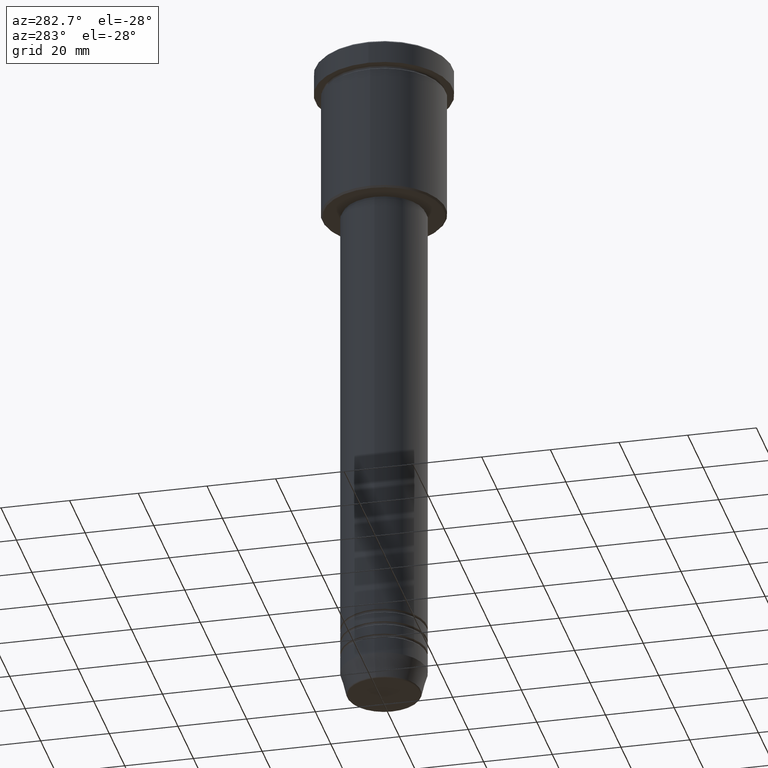
[diagram: clean part render]
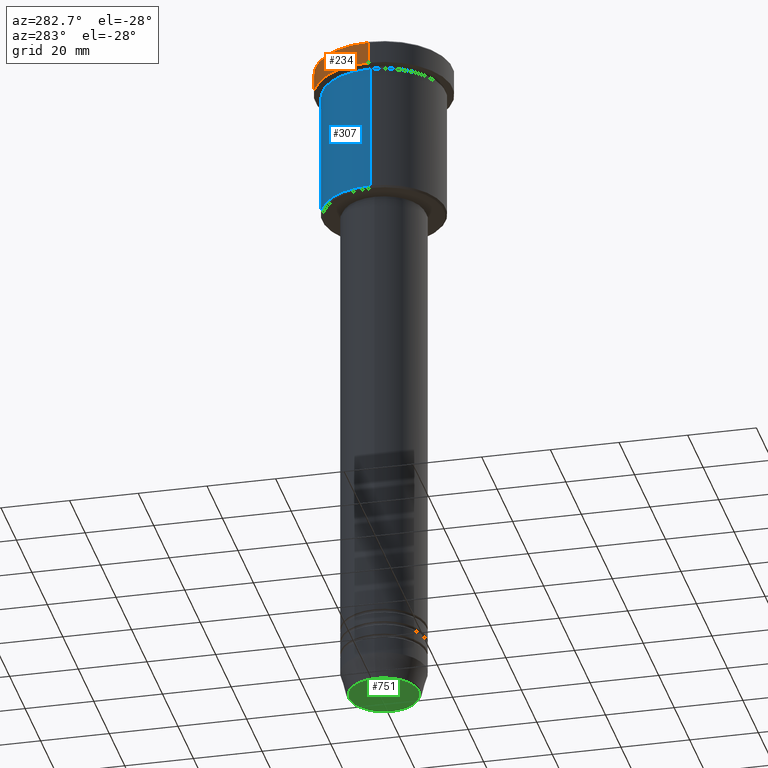
[diagram: same view with three faces highlighted in distinct colors, each labeled with its STEP entity id]
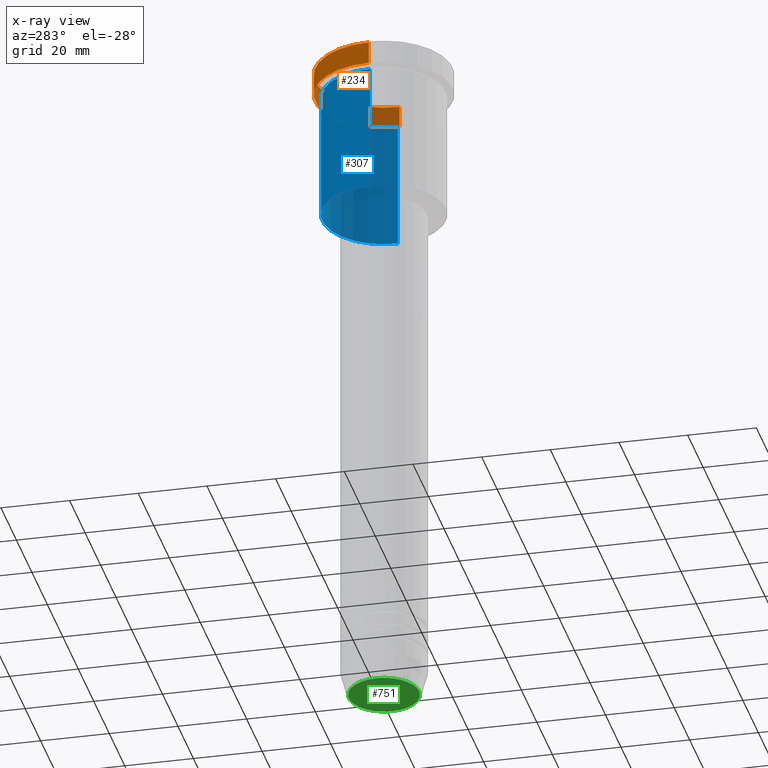
[diagram: x-ray of the same camera — body ghosted, the three highlighted faces saturated]
A machine part, auxiliary view with three faces highlighted in distinct colors.
The next image is the same camera in x-ray (body ghosted, the three faces saturated) — at least one of them is partly hidden behind the body in this view.
Their STEP definitions:

[orange] entity #234 — the highlighted cylindrical surface (partial cylindrical patch) has radius 20 mm, axis along (-0, -0, 1).
#18 = AXIS2_PLACEMENT_3D ( 'NONE', #517, #891, #692 ) ;
#97 = AXIS2_PLACEMENT_3D ( 'NONE', #924, #467, #353 ) ;
#216 = EDGE_LOOP ( 'NONE', ( #954, #1021, #431, #813 ) ) ;
#234 = ADVANCED_FACE ( 'NONE', ( #783 ), #349, .T. ) ;
#328 = CARTESIAN_POINT ( 'NONE',  ( 20.00000000000000000, 0.000000000000000000, -6.999999999999995559 ) ) ;
#349 = CYLINDRICAL_SURFACE ( 'NONE', #18, 20.00000000000000000 ) ;
#353 = DIRECTION ( 'NONE',  ( 1.000000000000000000, 0.000000000000000000, 0.000000000000000000 ) ) ;
#402 = DIRECTION ( 'NONE',  ( -0.000000000000000000, -0.000000000000000000, 1.000000000000000000 ) ) ;
#418 = CARTESIAN_POINT ( 'NONE',  ( -20.00000000000000000, 2.449293598294706513E-15, -6.999999999999995559 ) ) ;
#431 = ORIENTED_EDGE ( 'NONE', *, *, #806, .T. ) ;
#467 = DIRECTION ( 'NONE',  ( 0.000000000000000000, 0.000000000000000000, -1.000000000000000000 ) ) ;
#503 = LINE ( 'NONE', #576, #989 ) ;
#514 = DIRECTION ( 'NONE',  ( -0.000000000000000000, -0.000000000000000000, 1.000000000000000000 ) ) ;
#515 = EDGE_CURVE ( 'NONE', #1141, #627, #503, .T. ) ;
#517 = CARTESIAN_POINT ( 'NONE',  ( 0.000000000000000000, 0.000000000000000000, 0.000000000000000000 ) ) ;
#525 = CARTESIAN_POINT ( 'NONE',  ( -20.00000000000000000, 2.449293598294706513E-15, -0.4999999999999970024 ) ) ;
#576 = CARTESIAN_POINT ( 'NONE',  ( 20.00000000000000000, 0.000000000000000000, 0.000000000000000000 ) ) ;
#604 = CIRCLE ( 'NONE', #97, 20.00000000000000000 ) ;
#627 = VERTEX_POINT ( 'NONE', #1168 ) ;
#635 = EDGE_CURVE ( 'NONE', #1172, #738, #876, .T. ) ;
#692 = DIRECTION ( 'NONE',  ( 1.000000000000000000, 0.000000000000000000, 0.000000000000000000 ) ) ;
#738 = VERTEX_POINT ( 'NONE', #525 ) ;
#783 = FACE_OUTER_BOUND ( 'NONE', #216, .T. ) ;
#806 = EDGE_CURVE ( 'NONE', #738, #627, #604, .T. ) ;
#813 = ORIENTED_EDGE ( 'NONE', *, *, #515, .F. ) ;
#870 = CARTESIAN_POINT ( 'NONE',  ( -20.00000000000000000, 2.449293598294706513E-15, 0.000000000000000000 ) ) ;
#876 = LINE ( 'NONE', #870, #1107 ) ;
#881 = DIRECTION ( 'NONE',  ( -0.000000000000000000, -0.000000000000000000, 1.000000000000000000 ) ) ;
#891 = DIRECTION ( 'NONE',  ( -0.000000000000000000, -0.000000000000000000, 1.000000000000000000 ) ) ;
#924 = CARTESIAN_POINT ( 'NONE',  ( 0.000000000000000000, 0.000000000000000000, -0.4999999999999970024 ) ) ;
#954 = ORIENTED_EDGE ( 'NONE', *, *, #1079, .T. ) ;
#989 = VECTOR ( 'NONE', #402, 1000.000000000000000 ) ;
#1021 = ORIENTED_EDGE ( 'NONE', *, *, #635, .T. ) ;
#1068 = CIRCLE ( 'NONE', #1089, 20.00000000000000000 ) ;
#1079 = EDGE_CURVE ( 'NONE', #1141, #1172, #1068, .T. ) ;
#1089 = AXIS2_PLACEMENT_3D ( 'NONE', #1153, #514, #1142 ) ;
#1107 = VECTOR ( 'NONE', #881, 1000.000000000000000 ) ;
#1141 = VERTEX_POINT ( 'NONE', #328 ) ;
#1142 = DIRECTION ( 'NONE',  ( 1.000000000000000000, 0.000000000000000000, 0.000000000000000000 ) ) ;
#1153 = CARTESIAN_POINT ( 'NONE',  ( 0.000000000000000000, 0.000000000000000000, -6.999999999999995559 ) ) ;
#1168 = CARTESIAN_POINT ( 'NONE',  ( 20.00000000000000000, 0.000000000000000000, -0.4999999999999970024 ) ) ;
#1172 = VERTEX_POINT ( 'NONE', #418 ) ;

[blue] entity #307 — the highlighted cylindrical surface (partial cylindrical patch) has radius 18 mm, axis along (-0, -0, 1).
#33 = VECTOR ( 'NONE', #858, 1000.000000000000000 ) ;
#34 = EDGE_CURVE ( 'NONE', #933, #903, #448, .T. ) ;
#64 = EDGE_CURVE ( 'NONE', #933, #93, #1017, .T. ) ;
#74 = CARTESIAN_POINT ( 'NONE',  ( -18.00000000000000000, 2.204364238465235428E-15, 0.000000000000000000 ) ) ;
#93 = VERTEX_POINT ( 'NONE', #1138 ) ;
#114 = ORIENTED_EDGE ( 'NONE', *, *, #622, .T. ) ;
#215 = DIRECTION ( 'NONE',  ( -0.000000000000000000, -0.000000000000000000, 1.000000000000000000 ) ) ;
#276 = DIRECTION ( 'NONE',  ( 1.000000000000000000, 0.000000000000000000, 0.000000000000000000 ) ) ;
#282 = AXIS2_PLACEMENT_3D ( 'NONE', #475, #905, #930 ) ;
#307 = ADVANCED_FACE ( 'NONE', ( #363 ), #387, .T. ) ;
#363 = FACE_OUTER_BOUND ( 'NONE', #1083, .T. ) ;
#387 = CYLINDRICAL_SURFACE ( 'NONE', #282, 18.00000000000000000 ) ;
#421 = ORIENTED_EDGE ( 'NONE', *, *, #64, .F. ) ;
#425 = EDGE_CURVE ( 'NONE', #93, #606, #623, .T. ) ;
#448 = CIRCLE ( 'NONE', #945, 18.00000000000000000 ) ;
#475 = CARTESIAN_POINT ( 'NONE',  ( 0.000000000000000000, 0.000000000000000000, 0.000000000000000000 ) ) ;
#504 = CARTESIAN_POINT ( 'NONE',  ( 18.00000000000000000, 0.000000000000000000, 0.000000000000000000 ) ) ;
#523 = ORIENTED_EDGE ( 'NONE', *, *, #425, .F. ) ;
#535 = DIRECTION ( 'NONE',  ( -0.000000000000000000, -0.000000000000000000, 1.000000000000000000 ) ) ;
#543 = CARTESIAN_POINT ( 'NONE',  ( 0.000000000000000000, 0.000000000000000000, -7.999999999999996447 ) ) ;
#606 = VERTEX_POINT ( 'NONE', #1145 ) ;
#622 = EDGE_CURVE ( 'NONE', #903, #606, #1149, .T. ) ;
#623 = CIRCLE ( 'NONE', #1008, 18.00000000000000000 ) ;
#660 = CARTESIAN_POINT ( 'NONE',  ( 18.00000000000000000, 0.000000000000000000, -45.50000000000001421 ) ) ;
#669 = ORIENTED_EDGE ( 'NONE', *, *, #34, .T. ) ;
#678 = DIRECTION ( 'NONE',  ( -1.000000000000000000, 0.000000000000000000, 0.000000000000000000 ) ) ;
#858 = DIRECTION ( 'NONE',  ( -0.000000000000000000, -0.000000000000000000, 1.000000000000000000 ) ) ;
#892 = VECTOR ( 'NONE', #535, 1000.000000000000000 ) ;
#903 = VERTEX_POINT ( 'NONE', #1038 ) ;
#905 = DIRECTION ( 'NONE',  ( -0.000000000000000000, -0.000000000000000000, 1.000000000000000000 ) ) ;
#930 = DIRECTION ( 'NONE',  ( 1.000000000000000000, 0.000000000000000000, 0.000000000000000000 ) ) ;
#933 = VERTEX_POINT ( 'NONE', #660 ) ;
#945 = AXIS2_PLACEMENT_3D ( 'NONE', #957, #215, #678 ) ;
#957 = CARTESIAN_POINT ( 'NONE',  ( 0.000000000000000000, 0.000000000000000000, -45.50000000000001421 ) ) ;
#1008 = AXIS2_PLACEMENT_3D ( 'NONE', #543, #1098, #276 ) ;
#1017 = LINE ( 'NONE', #504, #33 ) ;
#1038 = CARTESIAN_POINT ( 'NONE',  ( -18.00000000000000000, 2.204364238465235428E-15, -45.50000000000001421 ) ) ;
#1083 = EDGE_LOOP ( 'NONE', ( #669, #114, #523, #421 ) ) ;
#1098 = DIRECTION ( 'NONE',  ( -0.000000000000000000, -0.000000000000000000, 1.000000000000000000 ) ) ;
#1138 = CARTESIAN_POINT ( 'NONE',  ( 18.00000000000000000, 0.000000000000000000, -7.999999999999996447 ) ) ;
#1145 = CARTESIAN_POINT ( 'NONE',  ( -18.00000000000000000, 2.204364238465235428E-15, -7.999999999999996447 ) ) ;
#1149 = LINE ( 'NONE', #74, #892 ) ;

[green] entity #751 — the highlighted planar face has unit normal (0, -0, 1).
#19 = AXIS2_PLACEMENT_3D ( 'NONE', #295, #572, #40 ) ;
#40 = DIRECTION ( 'NONE',  ( 1.000000000000000000, 0.000000000000000000, 0.000000000000000000 ) ) ;
#67 = CARTESIAN_POINT ( 'NONE',  ( 0.000000000000000000, 0.000000000000000000, -200.0000000000000000 ) ) ;
#88 = PLANE ( 'NONE',  #588 ) ;
#154 = CARTESIAN_POINT ( 'NONE',  ( -10.24069215899266538, 1.283696036640842967E-15, -200.0000000000000000 ) ) ;
#157 = ORIENTED_EDGE ( 'NONE', *, *, #556, .T. ) ;
#169 = CIRCLE ( 'NONE', #19, 10.24069215899266538 ) ;
#243 = DIRECTION ( 'NONE',  ( 0.000000000000000000, 0.000000000000000000, -1.000000000000000000 ) ) ;
#264 = CIRCLE ( 'NONE', #932, 10.24069215899266538 ) ;
#274 = ORIENTED_EDGE ( 'NONE', *, *, #1136, .T. ) ;
#295 = CARTESIAN_POINT ( 'NONE',  ( 0.000000000000000000, 0.000000000000000000, -200.0000000000000000 ) ) ;
#360 = EDGE_LOOP ( 'NONE', ( #274, #157 ) ) ;
#461 = DIRECTION ( 'NONE',  ( 1.000000000000000000, 0.000000000000000000, 0.000000000000000000 ) ) ;
#556 = EDGE_CURVE ( 'NONE', #701, #560, #169, .T. ) ;
#560 = VERTEX_POINT ( 'NONE', #761 ) ;
#572 = DIRECTION ( 'NONE',  ( 0.000000000000000000, 0.000000000000000000, -1.000000000000000000 ) ) ;
#588 = AXIS2_PLACEMENT_3D ( 'NONE', #1004, #820, #461 ) ;
#607 = DIRECTION ( 'NONE',  ( 1.000000000000000000, 0.000000000000000000, 0.000000000000000000 ) ) ;
#701 = VERTEX_POINT ( 'NONE', #154 ) ;
#751 = ADVANCED_FACE ( 'NONE', ( #1019 ), #88, .F. ) ;
#761 = CARTESIAN_POINT ( 'NONE',  ( 10.24069215899266538, 0.000000000000000000, -200.0000000000000000 ) ) ;
#820 = DIRECTION ( 'NONE',  ( 0.000000000000000000, -0.000000000000000000, 1.000000000000000000 ) ) ;
#932 = AXIS2_PLACEMENT_3D ( 'NONE', #67, #243, #607 ) ;
#1004 = CARTESIAN_POINT ( 'NONE',  ( 0.000000000000000000, 0.000000000000000000, -200.0000000000000000 ) ) ;
#1019 = FACE_OUTER_BOUND ( 'NONE', #360, .T. ) ;
#1136 = EDGE_CURVE ( 'NONE', #560, #701, #264, .T. ) ;